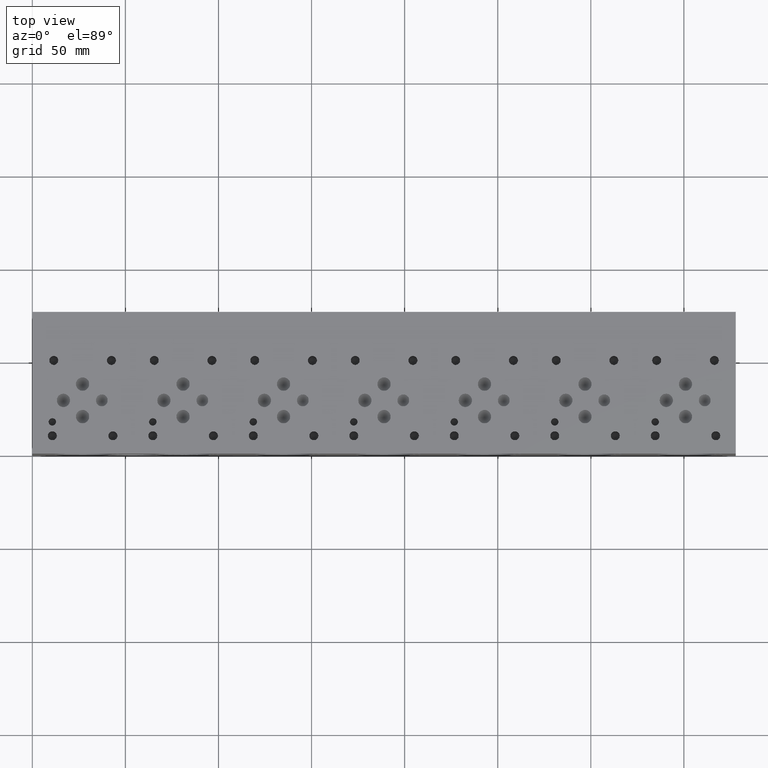
[diagram: clean part render]
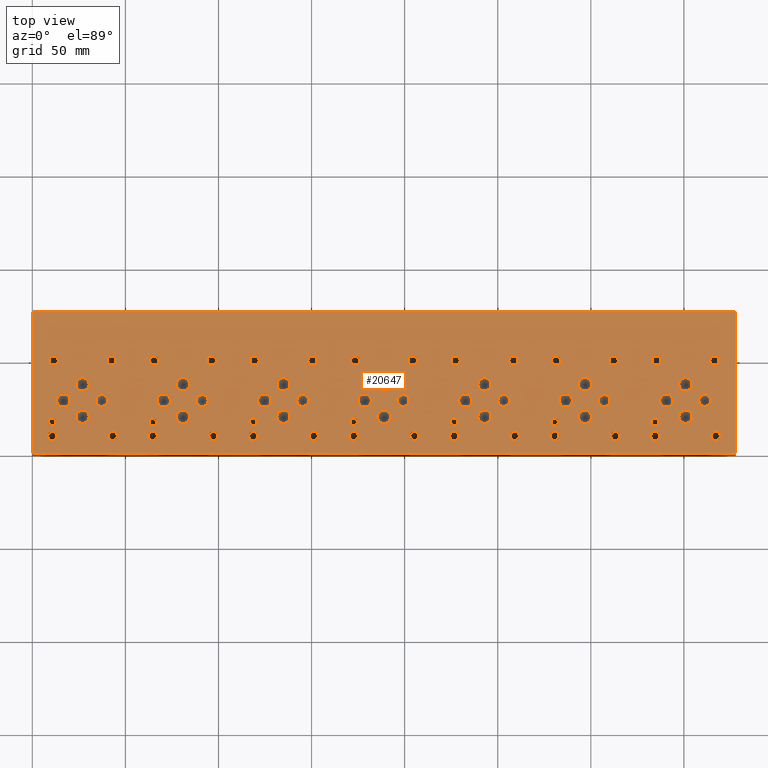
[diagram: same view with one face highlighted and labeled with its STEP entity id]
A machine part, top view. The second image highlights one B-rep face of the part: STEP entity #20647.
In plain terms, the highlighted planar face has unit normal (0, 0, 1).
Its self-contained STEP definition (entity closure, byte-faithful):
#746=CIRCLE('',#21731,1.9812);
#747=CIRCLE('',#21732,1.9812);
#750=CIRCLE('',#21737,1.9812);
#751=CIRCLE('',#21738,1.9812);
#754=CIRCLE('',#21743,1.9812);
#755=CIRCLE('',#21744,1.9812);
#758=CIRCLE('',#21749,1.9812);
#759=CIRCLE('',#21750,1.9812);
#762=CIRCLE('',#21755,1.9812);
#763=CIRCLE('',#21756,1.9812);
#766=CIRCLE('',#21761,1.9812);
#767=CIRCLE('',#21762,1.9812);
#770=CIRCLE('',#21767,3.175);
#771=CIRCLE('',#21768,3.175);
#774=CIRCLE('',#21773,3.175);
#775=CIRCLE('',#21774,3.175);
#778=CIRCLE('',#21779,3.175);
#779=CIRCLE('',#21780,3.175);
#782=CIRCLE('',#21785,3.175);
#783=CIRCLE('',#21786,3.175);
#786=CIRCLE('',#21791,3.175);
#787=CIRCLE('',#21792,3.175);
#790=CIRCLE('',#21797,3.175);
#791=CIRCLE('',#21798,3.175);
#794=CIRCLE('',#21803,3.175);
#795=CIRCLE('',#21804,3.175);
#798=CIRCLE('',#21809,3.5687);
#799=CIRCLE('',#21810,3.5687);
#802=CIRCLE('',#21815,3.5687);
#803=CIRCLE('',#21816,3.5687);
#806=CIRCLE('',#21821,3.5687);
#807=CIRCLE('',#21822,3.5687);
#810=CIRCLE('',#21827,3.5687);
#811=CIRCLE('',#21828,3.5687);
#814=CIRCLE('',#21833,3.5687);
#815=CIRCLE('',#21834,3.5687);
#818=CIRCLE('',#21839,3.5687);
#819=CIRCLE('',#21840,3.5687);
#822=CIRCLE('',#21845,3.5687);
#823=CIRCLE('',#21846,3.5687);
#826=CIRCLE('',#21851,3.5687);
#827=CIRCLE('',#21852,3.5687);
#830=CIRCLE('',#21857,3.5687);
#831=CIRCLE('',#21858,3.5687);
#834=CIRCLE('',#21863,3.5687);
#835=CIRCLE('',#21864,3.5687);
#838=CIRCLE('',#21869,3.5687);
#839=CIRCLE('',#21870,3.5687);
#842=CIRCLE('',#21875,3.5687);
#843=CIRCLE('',#21876,3.5687);
#846=CIRCLE('',#21881,3.5687);
#847=CIRCLE('',#21882,3.5687);
#850=CIRCLE('',#21887,3.5687);
#851=CIRCLE('',#21888,3.5687);
#854=CIRCLE('',#21893,3.5687);
#855=CIRCLE('',#21894,3.5687);
#858=CIRCLE('',#21899,3.5687);
#859=CIRCLE('',#21900,3.5687);
#862=CIRCLE('',#21905,3.5687);
#863=CIRCLE('',#21906,3.5687);
#866=CIRCLE('',#21911,3.5687);
#867=CIRCLE('',#21912,3.5687);
#870=CIRCLE('',#21917,3.5687);
#871=CIRCLE('',#21918,3.5687);
#874=CIRCLE('',#21923,3.5687);
#875=CIRCLE('',#21924,3.5687);
#878=CIRCLE('',#21929,3.5687);
#879=CIRCLE('',#21930,3.5687);
#882=CIRCLE('',#21935,1.9812);
#883=CIRCLE('',#21936,1.9812);
#889=CIRCLE('',#21945,2.413);
#890=CIRCLE('',#21946,2.413);
#896=CIRCLE('',#21956,2.413);
#897=CIRCLE('',#21957,2.413);
#903=CIRCLE('',#21967,2.413);
#904=CIRCLE('',#21968,2.413);
#910=CIRCLE('',#21978,2.413);
#911=CIRCLE('',#21979,2.413);
#917=CIRCLE('',#21989,2.413);
#918=CIRCLE('',#21990,2.413);
#924=CIRCLE('',#22000,2.413);
#925=CIRCLE('',#22001,2.413);
#931=CIRCLE('',#22011,2.413);
#932=CIRCLE('',#22012,2.413);
#938=CIRCLE('',#22022,2.413);
#939=CIRCLE('',#22023,2.413);
#945=CIRCLE('',#22033,2.413);
#946=CIRCLE('',#22034,2.413);
#952=CIRCLE('',#22044,2.413);
#953=CIRCLE('',#22045,2.413);
#959=CIRCLE('',#22055,2.413);
#960=CIRCLE('',#22056,2.413);
#966=CIRCLE('',#22066,2.413);
#967=CIRCLE('',#22067,2.413);
#973=CIRCLE('',#22077,2.413);
#974=CIRCLE('',#22078,2.413);
#980=CIRCLE('',#22088,2.413);
#981=CIRCLE('',#22089,2.413);
#987=CIRCLE('',#22099,2.413);
#988=CIRCLE('',#22100,2.413);
#994=CIRCLE('',#22110,2.413);
#995=CIRCLE('',#22111,2.413);
#1001=CIRCLE('',#22121,2.413);
#1002=CIRCLE('',#22122,2.413);
#1008=CIRCLE('',#22132,2.413);
#1009=CIRCLE('',#22133,2.413);
#1015=CIRCLE('',#22143,2.413);
#1016=CIRCLE('',#22144,2.413);
#1022=CIRCLE('',#22154,2.413);
#1023=CIRCLE('',#22155,2.413);
#1029=CIRCLE('',#22165,2.413);
#1030=CIRCLE('',#22166,2.413);
#1036=CIRCLE('',#22176,2.413);
#1037=CIRCLE('',#22177,2.413);
#1043=CIRCLE('',#22187,2.413);
#1044=CIRCLE('',#22188,2.413);
#1050=CIRCLE('',#22198,2.413);
#1051=CIRCLE('',#22199,2.413);
#1057=CIRCLE('',#22209,2.413);
#1058=CIRCLE('',#22210,2.413);
#1064=CIRCLE('',#22220,2.413);
#1065=CIRCLE('',#22221,2.413);
#1071=CIRCLE('',#22231,2.413);
#1072=CIRCLE('',#22232,2.413);
#1078=CIRCLE('',#22242,2.413);
#1079=CIRCLE('',#22243,2.413);
#1242=FACE_BOUND('',#4150,.T.);
#1243=FACE_BOUND('',#4151,.T.);
#1244=FACE_BOUND('',#4152,.T.);
#1245=FACE_BOUND('',#4153,.T.);
#1246=FACE_BOUND('',#4154,.T.);
#1247=FACE_BOUND('',#4155,.T.);
#1248=FACE_BOUND('',#4156,.T.);
#1249=FACE_BOUND('',#4157,.T.);
#1250=FACE_BOUND('',#4158,.T.);
#1251=FACE_BOUND('',#4159,.T.);
#1252=FACE_BOUND('',#4160,.T.);
#1253=FACE_BOUND('',#4161,.T.);
#1254=FACE_BOUND('',#4162,.T.);
#1255=FACE_BOUND('',#4163,.T.);
#1256=FACE_BOUND('',#4164,.T.);
#1257=FACE_BOUND('',#4165,.T.);
#1258=FACE_BOUND('',#4166,.T.);
#1259=FACE_BOUND('',#4167,.T.);
#1260=FACE_BOUND('',#4168,.T.);
#1261=FACE_BOUND('',#4169,.T.);
#1262=FACE_BOUND('',#4170,.T.);
#1263=FACE_BOUND('',#4171,.T.);
#1264=FACE_BOUND('',#4172,.T.);
#1265=FACE_BOUND('',#4173,.T.);
#1266=FACE_BOUND('',#4174,.T.);
#1267=FACE_BOUND('',#4175,.T.);
#1268=FACE_BOUND('',#4176,.T.);
#1269=FACE_BOUND('',#4177,.T.);
#1270=FACE_BOUND('',#4178,.T.);
#1271=FACE_BOUND('',#4179,.T.);
#1272=FACE_BOUND('',#4180,.T.);
#1273=FACE_BOUND('',#4181,.T.);
#1274=FACE_BOUND('',#4182,.T.);
#1275=FACE_BOUND('',#4183,.T.);
#1276=FACE_BOUND('',#4184,.T.);
#1277=FACE_BOUND('',#4185,.T.);
#1278=FACE_BOUND('',#4186,.T.);
#1279=FACE_BOUND('',#4187,.T.);
#1280=FACE_BOUND('',#4188,.T.);
#1281=FACE_BOUND('',#4189,.T.);
#1282=FACE_BOUND('',#4190,.T.);
#1283=FACE_BOUND('',#4191,.T.);
#1284=FACE_BOUND('',#4192,.T.);
#1285=FACE_BOUND('',#4193,.T.);
#1286=FACE_BOUND('',#4194,.T.);
#1287=FACE_BOUND('',#4195,.T.);
#1288=FACE_BOUND('',#4196,.T.);
#1289=FACE_BOUND('',#4197,.T.);
#1290=FACE_BOUND('',#4198,.T.);
#1291=FACE_BOUND('',#4199,.T.);
#1292=FACE_BOUND('',#4200,.T.);
#1293=FACE_BOUND('',#4201,.T.);
#1294=FACE_BOUND('',#4202,.T.);
#1295=FACE_BOUND('',#4203,.T.);
#1296=FACE_BOUND('',#4204,.T.);
#1297=FACE_BOUND('',#4205,.T.);
#1298=FACE_BOUND('',#4206,.T.);
#1299=FACE_BOUND('',#4207,.T.);
#1300=FACE_BOUND('',#4208,.T.);
#1301=FACE_BOUND('',#4209,.T.);
#1302=FACE_BOUND('',#4210,.T.);
#1303=FACE_BOUND('',#4211,.T.);
#1304=FACE_BOUND('',#4212,.T.);
#1825=PLANE('',#22249);
#2906=FACE_OUTER_BOUND('',#4149,.T.);
#4149=EDGE_LOOP('',(#18574,#18575,#18576,#18577));
#4150=EDGE_LOOP('',(#18578,#18579));
#4151=EDGE_LOOP('',(#18580,#18581));
#4152=EDGE_LOOP('',(#18582,#18583));
#4153=EDGE_LOOP('',(#18584,#18585));
#4154=EDGE_LOOP('',(#18586,#18587));
#4155=EDGE_LOOP('',(#18588,#18589));
#4156=EDGE_LOOP('',(#18590,#18591));
#4157=EDGE_LOOP('',(#18592,#18593));
#4158=EDGE_LOOP('',(#18594,#18595));
#4159=EDGE_LOOP('',(#18596,#18597));
#4160=EDGE_LOOP('',(#18598,#18599));
#4161=EDGE_LOOP('',(#18600,#18601));
#4162=EDGE_LOOP('',(#18602,#18603));
#4163=EDGE_LOOP('',(#18604,#18605));
#4164=EDGE_LOOP('',(#18606,#18607));
#4165=EDGE_LOOP('',(#18608,#18609));
#4166=EDGE_LOOP('',(#18610,#18611));
#4167=EDGE_LOOP('',(#18612,#18613));
#4168=EDGE_LOOP('',(#18614,#18615));
#4169=EDGE_LOOP('',(#18616,#18617));
#4170=EDGE_LOOP('',(#18618,#18619));
#4171=EDGE_LOOP('',(#18620,#18621));
#4172=EDGE_LOOP('',(#18622,#18623));
#4173=EDGE_LOOP('',(#18624,#18625));
#4174=EDGE_LOOP('',(#18626,#18627));
#4175=EDGE_LOOP('',(#18628,#18629));
#4176=EDGE_LOOP('',(#18630,#18631));
#4177=EDGE_LOOP('',(#18632,#18633));
#4178=EDGE_LOOP('',(#18634,#18635));
#4179=EDGE_LOOP('',(#18636,#18637));
#4180=EDGE_LOOP('',(#18638,#18639));
#4181=EDGE_LOOP('',(#18640,#18641));
#4182=EDGE_LOOP('',(#18642,#18643));
#4183=EDGE_LOOP('',(#18644,#18645));
#4184=EDGE_LOOP('',(#18646,#18647));
#4185=EDGE_LOOP('',(#18648,#18649));
#4186=EDGE_LOOP('',(#18650,#18651));
#4187=EDGE_LOOP('',(#18652,#18653));
#4188=EDGE_LOOP('',(#18654,#18655));
#4189=EDGE_LOOP('',(#18656,#18657));
#4190=EDGE_LOOP('',(#18658,#18659));
#4191=EDGE_LOOP('',(#18660,#18661));
#4192=EDGE_LOOP('',(#18662,#18663));
#4193=EDGE_LOOP('',(#18664,#18665));
#4194=EDGE_LOOP('',(#18666,#18667));
#4195=EDGE_LOOP('',(#18668,#18669));
#4196=EDGE_LOOP('',(#18670,#18671));
#4197=EDGE_LOOP('',(#18672,#18673));
#4198=EDGE_LOOP('',(#18674,#18675));
#4199=EDGE_LOOP('',(#18676,#18677));
#4200=EDGE_LOOP('',(#18678,#18679));
#4201=EDGE_LOOP('',(#18680,#18681));
#4202=EDGE_LOOP('',(#18682,#18683));
#4203=EDGE_LOOP('',(#18684,#18685));
#4204=EDGE_LOOP('',(#18686,#18687));
#4205=EDGE_LOOP('',(#18688,#18689));
#4206=EDGE_LOOP('',(#18690,#18691));
#4207=EDGE_LOOP('',(#18692,#18693));
#4208=EDGE_LOOP('',(#18694,#18695));
#4209=EDGE_LOOP('',(#18696,#18697));
#4210=EDGE_LOOP('',(#18698,#18699));
#4211=EDGE_LOOP('',(#18700,#18701));
#4212=EDGE_LOOP('',(#18702,#18703));
#4260=LINE('',#27466,#5962);
#5493=LINE('',#33453,#7195);
#5551=LINE('',#33724,#7253);
#5915=LINE('',#35990,#7617);
#5962=VECTOR('',#22323,10.);
#7195=VECTOR('',#24428,10.);
#7253=VECTOR('',#24540,10.);
#7617=VECTOR('',#27122,10.);
#8112=VERTEX_POINT('',#27463);
#8113=VERTEX_POINT('',#27465);
#9231=VERTEX_POINT('',#33451);
#9289=VERTEX_POINT('',#33723);
#9687=VERTEX_POINT('',#34924);
#9688=VERTEX_POINT('',#34925);
#9692=VERTEX_POINT('',#34937);
#9693=VERTEX_POINT('',#34938);
#9697=VERTEX_POINT('',#34950);
#9698=VERTEX_POINT('',#34951);
#9702=VERTEX_POINT('',#34963);
#9703=VERTEX_POINT('',#34964);
#9707=VERTEX_POINT('',#34976);
#9708=VERTEX_POINT('',#34977);
#9712=VERTEX_POINT('',#34989);
#9713=VERTEX_POINT('',#34990);
#9717=VERTEX_POINT('',#35002);
#9718=VERTEX_POINT('',#35003);
#9722=VERTEX_POINT('',#35015);
#9723=VERTEX_POINT('',#35016);
#9727=VERTEX_POINT('',#35028);
#9728=VERTEX_POINT('',#35029);
#9732=VERTEX_POINT('',#35041);
#9733=VERTEX_POINT('',#35042);
#9737=VERTEX_POINT('',#35054);
#9738=VERTEX_POINT('',#35055);
#9742=VERTEX_POINT('',#35067);
#9743=VERTEX_POINT('',#35068);
#9747=VERTEX_POINT('',#35080);
#9748=VERTEX_POINT('',#35081);
#9752=VERTEX_POINT('',#35093);
#9753=VERTEX_POINT('',#35094);
#9757=VERTEX_POINT('',#35106);
#9758=VERTEX_POINT('',#35107);
#9762=VERTEX_POINT('',#35119);
#9763=VERTEX_POINT('',#35120);
#9767=VERTEX_POINT('',#35132);
#9768=VERTEX_POINT('',#35133);
#9772=VERTEX_POINT('',#35145);
#9773=VERTEX_POINT('',#35146);
#9777=VERTEX_POINT('',#35158);
#9778=VERTEX_POINT('',#35159);
#9782=VERTEX_POINT('',#35171);
#9783=VERTEX_POINT('',#35172);
#9787=VERTEX_POINT('',#35184);
#9788=VERTEX_POINT('',#35185);
#9792=VERTEX_POINT('',#35197);
#9793=VERTEX_POINT('',#35198);
#9797=VERTEX_POINT('',#35210);
#9798=VERTEX_POINT('',#35211);
#9802=VERTEX_POINT('',#35223);
#9803=VERTEX_POINT('',#35224);
#9807=VERTEX_POINT('',#35236);
#9808=VERTEX_POINT('',#35237);
#9812=VERTEX_POINT('',#35249);
#9813=VERTEX_POINT('',#35250);
#9817=VERTEX_POINT('',#35262);
#9818=VERTEX_POINT('',#35263);
#9822=VERTEX_POINT('',#35275);
#9823=VERTEX_POINT('',#35276);
#9827=VERTEX_POINT('',#35288);
#9828=VERTEX_POINT('',#35289);
#9832=VERTEX_POINT('',#35301);
#9833=VERTEX_POINT('',#35302);
#9837=VERTEX_POINT('',#35314);
#9838=VERTEX_POINT('',#35315);
#9842=VERTEX_POINT('',#35327);
#9843=VERTEX_POINT('',#35328);
#9847=VERTEX_POINT('',#35340);
#9848=VERTEX_POINT('',#35341);
#9852=VERTEX_POINT('',#35353);
#9853=VERTEX_POINT('',#35354);
#9857=VERTEX_POINT('',#35366);
#9858=VERTEX_POINT('',#35367);
#9865=VERTEX_POINT('',#35386);
#9866=VERTEX_POINT('',#35387);
#9873=VERTEX_POINT('',#35408);
#9874=VERTEX_POINT('',#35409);
#9881=VERTEX_POINT('',#35430);
#9882=VERTEX_POINT('',#35431);
#9889=VERTEX_POINT('',#35452);
#9890=VERTEX_POINT('',#35453);
#9897=VERTEX_POINT('',#35474);
#9898=VERTEX_POINT('',#35475);
#9905=VERTEX_POINT('',#35496);
#9906=VERTEX_POINT('',#35497);
#9913=VERTEX_POINT('',#35518);
#9914=VERTEX_POINT('',#35519);
#9921=VERTEX_POINT('',#35540);
#9922=VERTEX_POINT('',#35541);
#9929=VERTEX_POINT('',#35562);
#9930=VERTEX_POINT('',#35563);
#9937=VERTEX_POINT('',#35584);
#9938=VERTEX_POINT('',#35585);
#9945=VERTEX_POINT('',#35606);
#9946=VERTEX_POINT('',#35607);
#9953=VERTEX_POINT('',#35628);
#9954=VERTEX_POINT('',#35629);
#9961=VERTEX_POINT('',#35650);
#9962=VERTEX_POINT('',#35651);
#9969=VERTEX_POINT('',#35672);
#9970=VERTEX_POINT('',#35673);
#9977=VERTEX_POINT('',#35694);
#9978=VERTEX_POINT('',#35695);
#9985=VERTEX_POINT('',#35716);
#9986=VERTEX_POINT('',#35717);
#9993=VERTEX_POINT('',#35738);
#9994=VERTEX_POINT('',#35739);
#10001=VERTEX_POINT('',#35760);
#10002=VERTEX_POINT('',#35761);
#10009=VERTEX_POINT('',#35782);
#10010=VERTEX_POINT('',#35783);
#10017=VERTEX_POINT('',#35804);
#10018=VERTEX_POINT('',#35805);
#10025=VERTEX_POINT('',#35826);
#10026=VERTEX_POINT('',#35827);
#10033=VERTEX_POINT('',#35848);
#10034=VERTEX_POINT('',#35849);
#10041=VERTEX_POINT('',#35870);
#10042=VERTEX_POINT('',#35871);
#10049=VERTEX_POINT('',#35892);
#10050=VERTEX_POINT('',#35893);
#10057=VERTEX_POINT('',#35914);
#10058=VERTEX_POINT('',#35915);
#10065=VERTEX_POINT('',#35936);
#10066=VERTEX_POINT('',#35937);
#10073=VERTEX_POINT('',#35958);
#10074=VERTEX_POINT('',#35959);
#10081=VERTEX_POINT('',#35980);
#10082=VERTEX_POINT('',#35981);
#10157=EDGE_CURVE('',#8113,#8112,#4260,.T.);
#11820=EDGE_CURVE('',#8112,#9231,#5493,.T.);
#11902=EDGE_CURVE('',#9289,#8113,#5551,.T.);
#12469=EDGE_CURVE('',#9687,#9688,#746,.T.);
#12470=EDGE_CURVE('',#9688,#9687,#747,.T.);
#12475=EDGE_CURVE('',#9692,#9693,#750,.T.);
#12476=EDGE_CURVE('',#9693,#9692,#751,.T.);
#12481=EDGE_CURVE('',#9697,#9698,#754,.T.);
#12482=EDGE_CURVE('',#9698,#9697,#755,.T.);
#12487=EDGE_CURVE('',#9702,#9703,#758,.T.);
#12488=EDGE_CURVE('',#9703,#9702,#759,.T.);
#12493=EDGE_CURVE('',#9707,#9708,#762,.T.);
#12494=EDGE_CURVE('',#9708,#9707,#763,.T.);
#12499=EDGE_CURVE('',#9712,#9713,#766,.T.);
#12500=EDGE_CURVE('',#9713,#9712,#767,.T.);
#12505=EDGE_CURVE('',#9717,#9718,#770,.T.);
#12506=EDGE_CURVE('',#9718,#9717,#771,.T.);
#12511=EDGE_CURVE('',#9722,#9723,#774,.T.);
#12512=EDGE_CURVE('',#9723,#9722,#775,.T.);
#12517=EDGE_CURVE('',#9727,#9728,#778,.T.);
#12518=EDGE_CURVE('',#9728,#9727,#779,.T.);
#12523=EDGE_CURVE('',#9732,#9733,#782,.T.);
#12524=EDGE_CURVE('',#9733,#9732,#783,.T.);
#12529=EDGE_CURVE('',#9737,#9738,#786,.T.);
#12530=EDGE_CURVE('',#9738,#9737,#787,.T.);
#12535=EDGE_CURVE('',#9742,#9743,#790,.T.);
#12536=EDGE_CURVE('',#9743,#9742,#791,.T.);
#12541=EDGE_CURVE('',#9747,#9748,#794,.T.);
#12542=EDGE_CURVE('',#9748,#9747,#795,.T.);
#12547=EDGE_CURVE('',#9752,#9753,#798,.T.);
#12548=EDGE_CURVE('',#9753,#9752,#799,.T.);
#12553=EDGE_CURVE('',#9757,#9758,#802,.T.);
#12554=EDGE_CURVE('',#9758,#9757,#803,.T.);
#12559=EDGE_CURVE('',#9762,#9763,#806,.T.);
#12560=EDGE_CURVE('',#9763,#9762,#807,.T.);
#12565=EDGE_CURVE('',#9767,#9768,#810,.T.);
#12566=EDGE_CURVE('',#9768,#9767,#811,.T.);
#12571=EDGE_CURVE('',#9772,#9773,#814,.T.);
#12572=EDGE_CURVE('',#9773,#9772,#815,.T.);
#12577=EDGE_CURVE('',#9777,#9778,#818,.T.);
#12578=EDGE_CURVE('',#9778,#9777,#819,.T.);
#12583=EDGE_CURVE('',#9782,#9783,#822,.T.);
#12584=EDGE_CURVE('',#9783,#9782,#823,.T.);
#12589=EDGE_CURVE('',#9787,#9788,#826,.T.);
#12590=EDGE_CURVE('',#9788,#9787,#827,.T.);
#12595=EDGE_CURVE('',#9792,#9793,#830,.T.);
#12596=EDGE_CURVE('',#9793,#9792,#831,.T.);
#12601=EDGE_CURVE('',#9797,#9798,#834,.T.);
#12602=EDGE_CURVE('',#9798,#9797,#835,.T.);
#12607=EDGE_CURVE('',#9802,#9803,#838,.T.);
#12608=EDGE_CURVE('',#9803,#9802,#839,.T.);
#12613=EDGE_CURVE('',#9807,#9808,#842,.T.);
#12614=EDGE_CURVE('',#9808,#9807,#843,.T.);
#12619=EDGE_CURVE('',#9812,#9813,#846,.T.);
#12620=EDGE_CURVE('',#9813,#9812,#847,.T.);
#12625=EDGE_CURVE('',#9817,#9818,#850,.T.);
#12626=EDGE_CURVE('',#9818,#9817,#851,.T.);
#12631=EDGE_CURVE('',#9822,#9823,#854,.T.);
#12632=EDGE_CURVE('',#9823,#9822,#855,.T.);
#12637=EDGE_CURVE('',#9827,#9828,#858,.T.);
#12638=EDGE_CURVE('',#9828,#9827,#859,.T.);
#12643=EDGE_CURVE('',#9832,#9833,#862,.T.);
#12644=EDGE_CURVE('',#9833,#9832,#863,.T.);
#12649=EDGE_CURVE('',#9837,#9838,#866,.T.);
#12650=EDGE_CURVE('',#9838,#9837,#867,.T.);
#12655=EDGE_CURVE('',#9842,#9843,#870,.T.);
#12656=EDGE_CURVE('',#9843,#9842,#871,.T.);
#12661=EDGE_CURVE('',#9847,#9848,#874,.T.);
#12662=EDGE_CURVE('',#9848,#9847,#875,.T.);
#12667=EDGE_CURVE('',#9852,#9853,#878,.T.);
#12668=EDGE_CURVE('',#9853,#9852,#879,.T.);
#12673=EDGE_CURVE('',#9857,#9858,#882,.T.);
#12674=EDGE_CURVE('',#9858,#9857,#883,.T.);
#12682=EDGE_CURVE('',#9865,#9866,#889,.T.);
#12683=EDGE_CURVE('',#9866,#9865,#890,.T.);
#12692=EDGE_CURVE('',#9873,#9874,#896,.T.);
#12693=EDGE_CURVE('',#9874,#9873,#897,.T.);
#12702=EDGE_CURVE('',#9881,#9882,#903,.T.);
#12703=EDGE_CURVE('',#9882,#9881,#904,.T.);
#12712=EDGE_CURVE('',#9889,#9890,#910,.T.);
#12713=EDGE_CURVE('',#9890,#9889,#911,.T.);
#12722=EDGE_CURVE('',#9897,#9898,#917,.T.);
#12723=EDGE_CURVE('',#9898,#9897,#918,.T.);
#12732=EDGE_CURVE('',#9905,#9906,#924,.T.);
#12733=EDGE_CURVE('',#9906,#9905,#925,.T.);
#12742=EDGE_CURVE('',#9913,#9914,#931,.T.);
#12743=EDGE_CURVE('',#9914,#9913,#932,.T.);
#12752=EDGE_CURVE('',#9921,#9922,#938,.T.);
#12753=EDGE_CURVE('',#9922,#9921,#939,.T.);
#12762=EDGE_CURVE('',#9929,#9930,#945,.T.);
#12763=EDGE_CURVE('',#9930,#9929,#946,.T.);
#12772=EDGE_CURVE('',#9937,#9938,#952,.T.);
#12773=EDGE_CURVE('',#9938,#9937,#953,.T.);
#12782=EDGE_CURVE('',#9945,#9946,#959,.T.);
#12783=EDGE_CURVE('',#9946,#9945,#960,.T.);
#12792=EDGE_CURVE('',#9953,#9954,#966,.T.);
#12793=EDGE_CURVE('',#9954,#9953,#967,.T.);
#12802=EDGE_CURVE('',#9961,#9962,#973,.T.);
#12803=EDGE_CURVE('',#9962,#9961,#974,.T.);
#12812=EDGE_CURVE('',#9969,#9970,#980,.T.);
#12813=EDGE_CURVE('',#9970,#9969,#981,.T.);
#12822=EDGE_CURVE('',#9977,#9978,#987,.T.);
#12823=EDGE_CURVE('',#9978,#9977,#988,.T.);
#12832=EDGE_CURVE('',#9985,#9986,#994,.T.);
#12833=EDGE_CURVE('',#9986,#9985,#995,.T.);
#12842=EDGE_CURVE('',#9993,#9994,#1001,.T.);
#12843=EDGE_CURVE('',#9994,#9993,#1002,.T.);
#12852=EDGE_CURVE('',#10001,#10002,#1008,.T.);
#12853=EDGE_CURVE('',#10002,#10001,#1009,.T.);
#12862=EDGE_CURVE('',#10009,#10010,#1015,.T.);
#12863=EDGE_CURVE('',#10010,#10009,#1016,.T.);
#12872=EDGE_CURVE('',#10017,#10018,#1022,.T.);
#12873=EDGE_CURVE('',#10018,#10017,#1023,.T.);
#12882=EDGE_CURVE('',#10025,#10026,#1029,.T.);
#12883=EDGE_CURVE('',#10026,#10025,#1030,.T.);
#12892=EDGE_CURVE('',#10033,#10034,#1036,.T.);
#12893=EDGE_CURVE('',#10034,#10033,#1037,.T.);
#12902=EDGE_CURVE('',#10041,#10042,#1043,.T.);
#12903=EDGE_CURVE('',#10042,#10041,#1044,.T.);
#12912=EDGE_CURVE('',#10049,#10050,#1050,.T.);
#12913=EDGE_CURVE('',#10050,#10049,#1051,.T.);
#12922=EDGE_CURVE('',#10057,#10058,#1057,.T.);
#12923=EDGE_CURVE('',#10058,#10057,#1058,.T.);
#12932=EDGE_CURVE('',#10065,#10066,#1064,.T.);
#12933=EDGE_CURVE('',#10066,#10065,#1065,.T.);
#12942=EDGE_CURVE('',#10073,#10074,#1071,.T.);
#12943=EDGE_CURVE('',#10074,#10073,#1072,.T.);
#12952=EDGE_CURVE('',#10081,#10082,#1078,.T.);
#12953=EDGE_CURVE('',#10082,#10081,#1079,.T.);
#12957=EDGE_CURVE('',#9231,#9289,#5915,.T.);
#18574=ORIENTED_EDGE('',*,*,#10157,.T.);
#18575=ORIENTED_EDGE('',*,*,#11820,.T.);
#18576=ORIENTED_EDGE('',*,*,#12957,.T.);
#18577=ORIENTED_EDGE('',*,*,#11902,.T.);
#18578=ORIENTED_EDGE('',*,*,#12469,.T.);
#18579=ORIENTED_EDGE('',*,*,#12470,.T.);
#18580=ORIENTED_EDGE('',*,*,#12475,.T.);
#18581=ORIENTED_EDGE('',*,*,#12476,.T.);
#18582=ORIENTED_EDGE('',*,*,#12481,.T.);
#18583=ORIENTED_EDGE('',*,*,#12482,.T.);
#18584=ORIENTED_EDGE('',*,*,#12487,.T.);
#18585=ORIENTED_EDGE('',*,*,#12488,.T.);
#18586=ORIENTED_EDGE('',*,*,#12493,.T.);
#18587=ORIENTED_EDGE('',*,*,#12494,.T.);
#18588=ORIENTED_EDGE('',*,*,#12499,.T.);
#18589=ORIENTED_EDGE('',*,*,#12500,.T.);
#18590=ORIENTED_EDGE('',*,*,#12505,.T.);
#18591=ORIENTED_EDGE('',*,*,#12506,.T.);
#18592=ORIENTED_EDGE('',*,*,#12511,.T.);
#18593=ORIENTED_EDGE('',*,*,#12512,.T.);
#18594=ORIENTED_EDGE('',*,*,#12517,.T.);
#18595=ORIENTED_EDGE('',*,*,#12518,.T.);
#18596=ORIENTED_EDGE('',*,*,#12523,.T.);
#18597=ORIENTED_EDGE('',*,*,#12524,.T.);
#18598=ORIENTED_EDGE('',*,*,#12529,.T.);
#18599=ORIENTED_EDGE('',*,*,#12530,.T.);
#18600=ORIENTED_EDGE('',*,*,#12535,.T.);
#18601=ORIENTED_EDGE('',*,*,#12536,.T.);
#18602=ORIENTED_EDGE('',*,*,#12541,.T.);
#18603=ORIENTED_EDGE('',*,*,#12542,.T.);
#18604=ORIENTED_EDGE('',*,*,#12547,.T.);
#18605=ORIENTED_EDGE('',*,*,#12548,.T.);
#18606=ORIENTED_EDGE('',*,*,#12553,.T.);
#18607=ORIENTED_EDGE('',*,*,#12554,.T.);
#18608=ORIENTED_EDGE('',*,*,#12559,.T.);
#18609=ORIENTED_EDGE('',*,*,#12560,.T.);
#18610=ORIENTED_EDGE('',*,*,#12565,.T.);
#18611=ORIENTED_EDGE('',*,*,#12566,.T.);
#18612=ORIENTED_EDGE('',*,*,#12571,.T.);
#18613=ORIENTED_EDGE('',*,*,#12572,.T.);
#18614=ORIENTED_EDGE('',*,*,#12577,.T.);
#18615=ORIENTED_EDGE('',*,*,#12578,.T.);
#18616=ORIENTED_EDGE('',*,*,#12583,.T.);
#18617=ORIENTED_EDGE('',*,*,#12584,.T.);
#18618=ORIENTED_EDGE('',*,*,#12589,.T.);
#18619=ORIENTED_EDGE('',*,*,#12590,.T.);
#18620=ORIENTED_EDGE('',*,*,#12595,.T.);
#18621=ORIENTED_EDGE('',*,*,#12596,.T.);
#18622=ORIENTED_EDGE('',*,*,#12601,.T.);
#18623=ORIENTED_EDGE('',*,*,#12602,.T.);
#18624=ORIENTED_EDGE('',*,*,#12607,.T.);
#18625=ORIENTED_EDGE('',*,*,#12608,.T.);
#18626=ORIENTED_EDGE('',*,*,#12613,.T.);
#18627=ORIENTED_EDGE('',*,*,#12614,.T.);
#18628=ORIENTED_EDGE('',*,*,#12619,.T.);
#18629=ORIENTED_EDGE('',*,*,#12620,.T.);
#18630=ORIENTED_EDGE('',*,*,#12625,.T.);
#18631=ORIENTED_EDGE('',*,*,#12626,.T.);
#18632=ORIENTED_EDGE('',*,*,#12631,.T.);
#18633=ORIENTED_EDGE('',*,*,#12632,.T.);
#18634=ORIENTED_EDGE('',*,*,#12637,.T.);
#18635=ORIENTED_EDGE('',*,*,#12638,.T.);
#18636=ORIENTED_EDGE('',*,*,#12643,.T.);
#18637=ORIENTED_EDGE('',*,*,#12644,.T.);
#18638=ORIENTED_EDGE('',*,*,#12649,.T.);
#18639=ORIENTED_EDGE('',*,*,#12650,.T.);
#18640=ORIENTED_EDGE('',*,*,#12655,.T.);
#18641=ORIENTED_EDGE('',*,*,#12656,.T.);
#18642=ORIENTED_EDGE('',*,*,#12661,.T.);
#18643=ORIENTED_EDGE('',*,*,#12662,.T.);
#18644=ORIENTED_EDGE('',*,*,#12667,.T.);
#18645=ORIENTED_EDGE('',*,*,#12668,.T.);
#18646=ORIENTED_EDGE('',*,*,#12673,.T.);
#18647=ORIENTED_EDGE('',*,*,#12674,.T.);
#18648=ORIENTED_EDGE('',*,*,#12682,.T.);
#18649=ORIENTED_EDGE('',*,*,#12683,.T.);
#18650=ORIENTED_EDGE('',*,*,#12692,.T.);
#18651=ORIENTED_EDGE('',*,*,#12693,.T.);
#18652=ORIENTED_EDGE('',*,*,#12702,.T.);
#18653=ORIENTED_EDGE('',*,*,#12703,.T.);
#18654=ORIENTED_EDGE('',*,*,#12712,.T.);
#18655=ORIENTED_EDGE('',*,*,#12713,.T.);
#18656=ORIENTED_EDGE('',*,*,#12722,.T.);
#18657=ORIENTED_EDGE('',*,*,#12723,.T.);
#18658=ORIENTED_EDGE('',*,*,#12732,.T.);
#18659=ORIENTED_EDGE('',*,*,#12733,.T.);
#18660=ORIENTED_EDGE('',*,*,#12742,.T.);
#18661=ORIENTED_EDGE('',*,*,#12743,.T.);
#18662=ORIENTED_EDGE('',*,*,#12752,.T.);
#18663=ORIENTED_EDGE('',*,*,#12753,.T.);
#18664=ORIENTED_EDGE('',*,*,#12762,.T.);
#18665=ORIENTED_EDGE('',*,*,#12763,.T.);
#18666=ORIENTED_EDGE('',*,*,#12772,.T.);
#18667=ORIENTED_EDGE('',*,*,#12773,.T.);
#18668=ORIENTED_EDGE('',*,*,#12782,.T.);
#18669=ORIENTED_EDGE('',*,*,#12783,.T.);
#18670=ORIENTED_EDGE('',*,*,#12792,.T.);
#18671=ORIENTED_EDGE('',*,*,#12793,.T.);
#18672=ORIENTED_EDGE('',*,*,#12802,.T.);
#18673=ORIENTED_EDGE('',*,*,#12803,.T.);
#18674=ORIENTED_EDGE('',*,*,#12812,.T.);
#18675=ORIENTED_EDGE('',*,*,#12813,.T.);
#18676=ORIENTED_EDGE('',*,*,#12822,.T.);
#18677=ORIENTED_EDGE('',*,*,#12823,.T.);
#18678=ORIENTED_EDGE('',*,*,#12832,.T.);
#18679=ORIENTED_EDGE('',*,*,#12833,.T.);
#18680=ORIENTED_EDGE('',*,*,#12842,.T.);
#18681=ORIENTED_EDGE('',*,*,#12843,.T.);
#18682=ORIENTED_EDGE('',*,*,#12852,.T.);
#18683=ORIENTED_EDGE('',*,*,#12853,.T.);
#18684=ORIENTED_EDGE('',*,*,#12862,.T.);
#18685=ORIENTED_EDGE('',*,*,#12863,.T.);
#18686=ORIENTED_EDGE('',*,*,#12872,.T.);
#18687=ORIENTED_EDGE('',*,*,#12873,.T.);
#18688=ORIENTED_EDGE('',*,*,#12882,.T.);
#18689=ORIENTED_EDGE('',*,*,#12883,.T.);
#18690=ORIENTED_EDGE('',*,*,#12892,.T.);
#18691=ORIENTED_EDGE('',*,*,#12893,.T.);
#18692=ORIENTED_EDGE('',*,*,#12902,.T.);
#18693=ORIENTED_EDGE('',*,*,#12903,.T.);
#18694=ORIENTED_EDGE('',*,*,#12912,.T.);
#18695=ORIENTED_EDGE('',*,*,#12913,.T.);
#18696=ORIENTED_EDGE('',*,*,#12922,.T.);
#18697=ORIENTED_EDGE('',*,*,#12923,.T.);
#18698=ORIENTED_EDGE('',*,*,#12932,.T.);
#18699=ORIENTED_EDGE('',*,*,#12933,.T.);
#18700=ORIENTED_EDGE('',*,*,#12942,.T.);
#18701=ORIENTED_EDGE('',*,*,#12943,.T.);
#18702=ORIENTED_EDGE('',*,*,#12952,.T.);
#18703=ORIENTED_EDGE('',*,*,#12953,.T.);
#20647=ADVANCED_FACE('',(#2906,#1242,#1243,#1244,#1245,#1246,#1247,#1248,
#1249,#1250,#1251,#1252,#1253,#1254,#1255,#1256,#1257,#1258,#1259,#1260,
#1261,#1262,#1263,#1264,#1265,#1266,#1267,#1268,#1269,#1270,#1271,#1272,
#1273,#1274,#1275,#1276,#1277,#1278,#1279,#1280,#1281,#1282,#1283,#1284,
#1285,#1286,#1287,#1288,#1289,#1290,#1291,#1292,#1293,#1294,#1295,#1296,
#1297,#1298,#1299,#1300,#1301,#1302,#1303,#1304),#1825,.T.);
#21731=AXIS2_PLACEMENT_3D('',#34926,#25936,#25937);
#21732=AXIS2_PLACEMENT_3D('',#34927,#25938,#25939);
#21737=AXIS2_PLACEMENT_3D('',#34939,#25950,#25951);
#21738=AXIS2_PLACEMENT_3D('',#34940,#25952,#25953);
#21743=AXIS2_PLACEMENT_3D('',#34952,#25964,#25965);
#21744=AXIS2_PLACEMENT_3D('',#34953,#25966,#25967);
#21749=AXIS2_PLACEMENT_3D('',#34965,#25978,#25979);
#21750=AXIS2_PLACEMENT_3D('',#34966,#25980,#25981);
#21755=AXIS2_PLACEMENT_3D('',#34978,#25992,#25993);
#21756=AXIS2_PLACEMENT_3D('',#34979,#25994,#25995);
#21761=AXIS2_PLACEMENT_3D('',#34991,#26006,#26007);
#21762=AXIS2_PLACEMENT_3D('',#34992,#26008,#26009);
#21767=AXIS2_PLACEMENT_3D('',#35004,#26020,#26021);
#21768=AXIS2_PLACEMENT_3D('',#35005,#26022,#26023);
#21773=AXIS2_PLACEMENT_3D('',#35017,#26034,#26035);
#21774=AXIS2_PLACEMENT_3D('',#35018,#26036,#26037);
#21779=AXIS2_PLACEMENT_3D('',#35030,#26048,#26049);
#21780=AXIS2_PLACEMENT_3D('',#35031,#26050,#26051);
#21785=AXIS2_PLACEMENT_3D('',#35043,#26062,#26063);
#21786=AXIS2_PLACEMENT_3D('',#35044,#26064,#26065);
#21791=AXIS2_PLACEMENT_3D('',#35056,#26076,#26077);
#21792=AXIS2_PLACEMENT_3D('',#35057,#26078,#26079);
#21797=AXIS2_PLACEMENT_3D('',#35069,#26090,#26091);
#21798=AXIS2_PLACEMENT_3D('',#35070,#26092,#26093);
#21803=AXIS2_PLACEMENT_3D('',#35082,#26104,#26105);
#21804=AXIS2_PLACEMENT_3D('',#35083,#26106,#26107);
#21809=AXIS2_PLACEMENT_3D('',#35095,#26118,#26119);
#21810=AXIS2_PLACEMENT_3D('',#35096,#26120,#26121);
#21815=AXIS2_PLACEMENT_3D('',#35108,#26132,#26133);
#21816=AXIS2_PLACEMENT_3D('',#35109,#26134,#26135);
#21821=AXIS2_PLACEMENT_3D('',#35121,#26146,#26147);
#21822=AXIS2_PLACEMENT_3D('',#35122,#26148,#26149);
#21827=AXIS2_PLACEMENT_3D('',#35134,#26160,#26161);
#21828=AXIS2_PLACEMENT_3D('',#35135,#26162,#26163);
#21833=AXIS2_PLACEMENT_3D('',#35147,#26174,#26175);
#21834=AXIS2_PLACEMENT_3D('',#35148,#26176,#26177);
#21839=AXIS2_PLACEMENT_3D('',#35160,#26188,#26189);
#21840=AXIS2_PLACEMENT_3D('',#35161,#26190,#26191);
#21845=AXIS2_PLACEMENT_3D('',#35173,#26202,#26203);
#21846=AXIS2_PLACEMENT_3D('',#35174,#26204,#26205);
#21851=AXIS2_PLACEMENT_3D('',#35186,#26216,#26217);
#21852=AXIS2_PLACEMENT_3D('',#35187,#26218,#26219);
#21857=AXIS2_PLACEMENT_3D('',#35199,#26230,#26231);
#21858=AXIS2_PLACEMENT_3D('',#35200,#26232,#26233);
#21863=AXIS2_PLACEMENT_3D('',#35212,#26244,#26245);
#21864=AXIS2_PLACEMENT_3D('',#35213,#26246,#26247);
#21869=AXIS2_PLACEMENT_3D('',#35225,#26258,#26259);
#21870=AXIS2_PLACEMENT_3D('',#35226,#26260,#26261);
#21875=AXIS2_PLACEMENT_3D('',#35238,#26272,#26273);
#21876=AXIS2_PLACEMENT_3D('',#35239,#26274,#26275);
#21881=AXIS2_PLACEMENT_3D('',#35251,#26286,#26287);
#21882=AXIS2_PLACEMENT_3D('',#35252,#26288,#26289);
#21887=AXIS2_PLACEMENT_3D('',#35264,#26300,#26301);
#21888=AXIS2_PLACEMENT_3D('',#35265,#26302,#26303);
#21893=AXIS2_PLACEMENT_3D('',#35277,#26314,#26315);
#21894=AXIS2_PLACEMENT_3D('',#35278,#26316,#26317);
#21899=AXIS2_PLACEMENT_3D('',#35290,#26328,#26329);
#21900=AXIS2_PLACEMENT_3D('',#35291,#26330,#26331);
#21905=AXIS2_PLACEMENT_3D('',#35303,#26342,#26343);
#21906=AXIS2_PLACEMENT_3D('',#35304,#26344,#26345);
#21911=AXIS2_PLACEMENT_3D('',#35316,#26356,#26357);
#21912=AXIS2_PLACEMENT_3D('',#35317,#26358,#26359);
#21917=AXIS2_PLACEMENT_3D('',#35329,#26370,#26371);
#21918=AXIS2_PLACEMENT_3D('',#35330,#26372,#26373);
#21923=AXIS2_PLACEMENT_3D('',#35342,#26384,#26385);
#21924=AXIS2_PLACEMENT_3D('',#35343,#26386,#26387);
#21929=AXIS2_PLACEMENT_3D('',#35355,#26398,#26399);
#21930=AXIS2_PLACEMENT_3D('',#35356,#26400,#26401);
#21935=AXIS2_PLACEMENT_3D('',#35368,#26412,#26413);
#21936=AXIS2_PLACEMENT_3D('',#35369,#26414,#26415);
#21945=AXIS2_PLACEMENT_3D('',#35388,#26434,#26435);
#21946=AXIS2_PLACEMENT_3D('',#35389,#26436,#26437);
#21956=AXIS2_PLACEMENT_3D('',#35410,#26459,#26460);
#21957=AXIS2_PLACEMENT_3D('',#35411,#26461,#26462);
#21967=AXIS2_PLACEMENT_3D('',#35432,#26484,#26485);
#21968=AXIS2_PLACEMENT_3D('',#35433,#26486,#26487);
#21978=AXIS2_PLACEMENT_3D('',#35454,#26509,#26510);
#21979=AXIS2_PLACEMENT_3D('',#35455,#26511,#26512);
#21989=AXIS2_PLACEMENT_3D('',#35476,#26534,#26535);
#21990=AXIS2_PLACEMENT_3D('',#35477,#26536,#26537);
#22000=AXIS2_PLACEMENT_3D('',#35498,#26559,#26560);
#22001=AXIS2_PLACEMENT_3D('',#35499,#26561,#26562);
#22011=AXIS2_PLACEMENT_3D('',#35520,#26584,#26585);
#22012=AXIS2_PLACEMENT_3D('',#35521,#26586,#26587);
#22022=AXIS2_PLACEMENT_3D('',#35542,#26609,#26610);
#22023=AXIS2_PLACEMENT_3D('',#35543,#26611,#26612);
#22033=AXIS2_PLACEMENT_3D('',#35564,#26634,#26635);
#22034=AXIS2_PLACEMENT_3D('',#35565,#26636,#26637);
#22044=AXIS2_PLACEMENT_3D('',#35586,#26659,#26660);
#22045=AXIS2_PLACEMENT_3D('',#35587,#26661,#26662);
#22055=AXIS2_PLACEMENT_3D('',#35608,#26684,#26685);
#22056=AXIS2_PLACEMENT_3D('',#35609,#26686,#26687);
#22066=AXIS2_PLACEMENT_3D('',#35630,#26709,#26710);
#22067=AXIS2_PLACEMENT_3D('',#35631,#26711,#26712);
#22077=AXIS2_PLACEMENT_3D('',#35652,#26734,#26735);
#22078=AXIS2_PLACEMENT_3D('',#35653,#26736,#26737);
#22088=AXIS2_PLACEMENT_3D('',#35674,#26759,#26760);
#22089=AXIS2_PLACEMENT_3D('',#35675,#26761,#26762);
#22099=AXIS2_PLACEMENT_3D('',#35696,#26784,#26785);
#22100=AXIS2_PLACEMENT_3D('',#35697,#26786,#26787);
#22110=AXIS2_PLACEMENT_3D('',#35718,#26809,#26810);
#22111=AXIS2_PLACEMENT_3D('',#35719,#26811,#26812);
#22121=AXIS2_PLACEMENT_3D('',#35740,#26834,#26835);
#22122=AXIS2_PLACEMENT_3D('',#35741,#26836,#26837);
#22132=AXIS2_PLACEMENT_3D('',#35762,#26859,#26860);
#22133=AXIS2_PLACEMENT_3D('',#35763,#26861,#26862);
#22143=AXIS2_PLACEMENT_3D('',#35784,#26884,#26885);
#22144=AXIS2_PLACEMENT_3D('',#35785,#26886,#26887);
#22154=AXIS2_PLACEMENT_3D('',#35806,#26909,#26910);
#22155=AXIS2_PLACEMENT_3D('',#35807,#26911,#26912);
#22165=AXIS2_PLACEMENT_3D('',#35828,#26934,#26935);
#22166=AXIS2_PLACEMENT_3D('',#35829,#26936,#26937);
#22176=AXIS2_PLACEMENT_3D('',#35850,#26959,#26960);
#22177=AXIS2_PLACEMENT_3D('',#35851,#26961,#26962);
#22187=AXIS2_PLACEMENT_3D('',#35872,#26984,#26985);
#22188=AXIS2_PLACEMENT_3D('',#35873,#26986,#26987);
#22198=AXIS2_PLACEMENT_3D('',#35894,#27009,#27010);
#22199=AXIS2_PLACEMENT_3D('',#35895,#27011,#27012);
#22209=AXIS2_PLACEMENT_3D('',#35916,#27034,#27035);
#22210=AXIS2_PLACEMENT_3D('',#35917,#27036,#27037);
#22220=AXIS2_PLACEMENT_3D('',#35938,#27059,#27060);
#22221=AXIS2_PLACEMENT_3D('',#35939,#27061,#27062);
#22231=AXIS2_PLACEMENT_3D('',#35960,#27084,#27085);
#22232=AXIS2_PLACEMENT_3D('',#35961,#27086,#27087);
#22242=AXIS2_PLACEMENT_3D('',#35982,#27109,#27110);
#22243=AXIS2_PLACEMENT_3D('',#35983,#27111,#27112);
#22249=AXIS2_PLACEMENT_3D('',#35993,#27127,#27128);
#22323=DIRECTION('',(1.,0.,0.));
#24428=DIRECTION('',(0.,1.,0.));
#24540=DIRECTION('',(0.,-1.,0.));
#25936=DIRECTION('center_axis',(0.,0.,-1.));
#25937=DIRECTION('ref_axis',(1.,0.,0.));
#25938=DIRECTION('center_axis',(0.,0.,-1.));
#25939=DIRECTION('ref_axis',(1.,0.,0.));
#25950=DIRECTION('center_axis',(0.,0.,-1.));
#25951=DIRECTION('ref_axis',(1.,0.,0.));
#25952=DIRECTION('center_axis',(0.,0.,-1.));
#25953=DIRECTION('ref_axis',(1.,0.,0.));
#25964=DIRECTION('center_axis',(0.,0.,-1.));
#25965=DIRECTION('ref_axis',(1.,0.,0.));
#25966=DIRECTION('center_axis',(0.,0.,-1.));
#25967=DIRECTION('ref_axis',(1.,0.,0.));
#25978=DIRECTION('center_axis',(0.,0.,-1.));
#25979=DIRECTION('ref_axis',(1.,0.,0.));
#25980=DIRECTION('center_axis',(0.,0.,-1.));
#25981=DIRECTION('ref_axis',(1.,0.,0.));
#25992=DIRECTION('center_axis',(0.,0.,-1.));
#25993=DIRECTION('ref_axis',(1.,0.,0.));
#25994=DIRECTION('center_axis',(0.,0.,-1.));
#25995=DIRECTION('ref_axis',(1.,0.,0.));
#26006=DIRECTION('center_axis',(0.,0.,-1.));
#26007=DIRECTION('ref_axis',(1.,0.,0.));
#26008=DIRECTION('center_axis',(0.,0.,-1.));
#26009=DIRECTION('ref_axis',(1.,0.,0.));
#26020=DIRECTION('center_axis',(0.,0.,-1.));
#26021=DIRECTION('ref_axis',(1.,0.,0.));
#26022=DIRECTION('center_axis',(0.,0.,-1.));
#26023=DIRECTION('ref_axis',(1.,0.,0.));
#26034=DIRECTION('center_axis',(0.,0.,-1.));
#26035=DIRECTION('ref_axis',(1.,0.,0.));
#26036=DIRECTION('center_axis',(0.,0.,-1.));
#26037=DIRECTION('ref_axis',(1.,0.,0.));
#26048=DIRECTION('center_axis',(0.,0.,-1.));
#26049=DIRECTION('ref_axis',(1.,0.,0.));
#26050=DIRECTION('center_axis',(0.,0.,-1.));
#26051=DIRECTION('ref_axis',(1.,0.,0.));
#26062=DIRECTION('center_axis',(0.,0.,-1.));
#26063=DIRECTION('ref_axis',(1.,0.,0.));
#26064=DIRECTION('center_axis',(0.,0.,-1.));
#26065=DIRECTION('ref_axis',(1.,0.,0.));
#26076=DIRECTION('center_axis',(0.,0.,-1.));
#26077=DIRECTION('ref_axis',(1.,0.,0.));
#26078=DIRECTION('center_axis',(0.,0.,-1.));
#26079=DIRECTION('ref_axis',(1.,0.,0.));
#26090=DIRECTION('center_axis',(0.,0.,-1.));
#26091=DIRECTION('ref_axis',(1.,0.,0.));
#26092=DIRECTION('center_axis',(0.,0.,-1.));
#26093=DIRECTION('ref_axis',(1.,0.,0.));
#26104=DIRECTION('center_axis',(0.,0.,-1.));
#26105=DIRECTION('ref_axis',(1.,0.,0.));
#26106=DIRECTION('center_axis',(0.,0.,-1.));
#26107=DIRECTION('ref_axis',(1.,0.,0.));
#26118=DIRECTION('center_axis',(0.,0.,-1.));
#26119=DIRECTION('ref_axis',(1.,0.,0.));
#26120=DIRECTION('center_axis',(0.,0.,-1.));
#26121=DIRECTION('ref_axis',(1.,0.,0.));
#26132=DIRECTION('center_axis',(0.,0.,-1.));
#26133=DIRECTION('ref_axis',(1.,0.,0.));
#26134=DIRECTION('center_axis',(0.,0.,-1.));
#26135=DIRECTION('ref_axis',(1.,0.,0.));
#26146=DIRECTION('center_axis',(0.,0.,-1.));
#26147=DIRECTION('ref_axis',(1.,0.,0.));
#26148=DIRECTION('center_axis',(0.,0.,-1.));
#26149=DIRECTION('ref_axis',(1.,0.,0.));
#26160=DIRECTION('center_axis',(0.,0.,-1.));
#26161=DIRECTION('ref_axis',(1.,0.,0.));
#26162=DIRECTION('center_axis',(0.,0.,-1.));
#26163=DIRECTION('ref_axis',(1.,0.,0.));
#26174=DIRECTION('center_axis',(0.,0.,-1.));
#26175=DIRECTION('ref_axis',(1.,0.,0.));
#26176=DIRECTION('center_axis',(0.,0.,-1.));
#26177=DIRECTION('ref_axis',(1.,0.,0.));
#26188=DIRECTION('center_axis',(0.,0.,-1.));
#26189=DIRECTION('ref_axis',(1.,0.,0.));
#26190=DIRECTION('center_axis',(0.,0.,-1.));
#26191=DIRECTION('ref_axis',(1.,0.,0.));
#26202=DIRECTION('center_axis',(0.,0.,-1.));
#26203=DIRECTION('ref_axis',(1.,0.,0.));
#26204=DIRECTION('center_axis',(0.,0.,-1.));
#26205=DIRECTION('ref_axis',(1.,0.,0.));
#26216=DIRECTION('center_axis',(0.,0.,-1.));
#26217=DIRECTION('ref_axis',(1.,0.,0.));
#26218=DIRECTION('center_axis',(0.,0.,-1.));
#26219=DIRECTION('ref_axis',(1.,0.,0.));
#26230=DIRECTION('center_axis',(0.,0.,-1.));
#26231=DIRECTION('ref_axis',(1.,0.,0.));
#26232=DIRECTION('center_axis',(0.,0.,-1.));
#26233=DIRECTION('ref_axis',(1.,0.,0.));
#26244=DIRECTION('center_axis',(0.,0.,-1.));
#26245=DIRECTION('ref_axis',(1.,0.,0.));
#26246=DIRECTION('center_axis',(0.,0.,-1.));
#26247=DIRECTION('ref_axis',(1.,0.,0.));
#26258=DIRECTION('center_axis',(0.,0.,-1.));
#26259=DIRECTION('ref_axis',(1.,0.,0.));
#26260=DIRECTION('center_axis',(0.,0.,-1.));
#26261=DIRECTION('ref_axis',(1.,0.,0.));
#26272=DIRECTION('center_axis',(0.,0.,-1.));
#26273=DIRECTION('ref_axis',(1.,0.,0.));
#26274=DIRECTION('center_axis',(0.,0.,-1.));
#26275=DIRECTION('ref_axis',(1.,0.,0.));
#26286=DIRECTION('center_axis',(0.,0.,-1.));
#26287=DIRECTION('ref_axis',(1.,0.,0.));
#26288=DIRECTION('center_axis',(0.,0.,-1.));
#26289=DIRECTION('ref_axis',(1.,0.,0.));
#26300=DIRECTION('center_axis',(0.,0.,-1.));
#26301=DIRECTION('ref_axis',(1.,0.,0.));
#26302=DIRECTION('center_axis',(0.,0.,-1.));
#26303=DIRECTION('ref_axis',(1.,0.,0.));
#26314=DIRECTION('center_axis',(0.,0.,-1.));
#26315=DIRECTION('ref_axis',(1.,0.,0.));
#26316=DIRECTION('center_axis',(0.,0.,-1.));
#26317=DIRECTION('ref_axis',(1.,0.,0.));
#26328=DIRECTION('center_axis',(0.,0.,-1.));
#26329=DIRECTION('ref_axis',(1.,0.,0.));
#26330=DIRECTION('center_axis',(0.,0.,-1.));
#26331=DIRECTION('ref_axis',(1.,0.,0.));
#26342=DIRECTION('center_axis',(0.,0.,-1.));
#26343=DIRECTION('ref_axis',(1.,0.,0.));
#26344=DIRECTION('center_axis',(0.,0.,-1.));
#26345=DIRECTION('ref_axis',(1.,0.,0.));
#26356=DIRECTION('center_axis',(0.,0.,-1.));
#26357=DIRECTION('ref_axis',(1.,0.,0.));
#26358=DIRECTION('center_axis',(0.,0.,-1.));
#26359=DIRECTION('ref_axis',(1.,0.,0.));
#26370=DIRECTION('center_axis',(0.,0.,-1.));
#26371=DIRECTION('ref_axis',(1.,0.,0.));
#26372=DIRECTION('center_axis',(0.,0.,-1.));
#26373=DIRECTION('ref_axis',(1.,0.,0.));
#26384=DIRECTION('center_axis',(0.,0.,-1.));
#26385=DIRECTION('ref_axis',(1.,0.,0.));
#26386=DIRECTION('center_axis',(0.,0.,-1.));
#26387=DIRECTION('ref_axis',(1.,0.,0.));
#26398=DIRECTION('center_axis',(0.,0.,-1.));
#26399=DIRECTION('ref_axis',(1.,0.,0.));
#26400=DIRECTION('center_axis',(0.,0.,-1.));
#26401=DIRECTION('ref_axis',(1.,0.,0.));
#26412=DIRECTION('center_axis',(0.,0.,-1.));
#26413=DIRECTION('ref_axis',(1.,0.,0.));
#26414=DIRECTION('center_axis',(0.,0.,-1.));
#26415=DIRECTION('ref_axis',(1.,0.,0.));
#26434=DIRECTION('center_axis',(0.,0.,-1.));
#26435=DIRECTION('ref_axis',(1.,0.,0.));
#26436=DIRECTION('center_axis',(0.,0.,-1.));
#26437=DIRECTION('ref_axis',(1.,0.,0.));
#26459=DIRECTION('center_axis',(0.,0.,-1.));
#26460=DIRECTION('ref_axis',(1.,0.,0.));
#26461=DIRECTION('center_axis',(0.,0.,-1.));
#26462=DIRECTION('ref_axis',(1.,0.,0.));
#26484=DIRECTION('center_axis',(0.,0.,-1.));
#26485=DIRECTION('ref_axis',(1.,0.,0.));
#26486=DIRECTION('center_axis',(0.,0.,-1.));
#26487=DIRECTION('ref_axis',(1.,0.,0.));
#26509=DIRECTION('center_axis',(0.,0.,-1.));
#26510=DIRECTION('ref_axis',(1.,0.,0.));
#26511=DIRECTION('center_axis',(0.,0.,-1.));
#26512=DIRECTION('ref_axis',(1.,0.,0.));
#26534=DIRECTION('center_axis',(0.,0.,-1.));
#26535=DIRECTION('ref_axis',(1.,0.,0.));
#26536=DIRECTION('center_axis',(0.,0.,-1.));
#26537=DIRECTION('ref_axis',(1.,0.,0.));
#26559=DIRECTION('center_axis',(0.,0.,-1.));
#26560=DIRECTION('ref_axis',(1.,0.,0.));
#26561=DIRECTION('center_axis',(0.,0.,-1.));
#26562=DIRECTION('ref_axis',(1.,0.,0.));
#26584=DIRECTION('center_axis',(0.,0.,-1.));
#26585=DIRECTION('ref_axis',(1.,0.,0.));
#26586=DIRECTION('center_axis',(0.,0.,-1.));
#26587=DIRECTION('ref_axis',(1.,0.,0.));
#26609=DIRECTION('center_axis',(0.,0.,-1.));
#26610=DIRECTION('ref_axis',(1.,0.,0.));
#26611=DIRECTION('center_axis',(0.,0.,-1.));
#26612=DIRECTION('ref_axis',(1.,0.,0.));
#26634=DIRECTION('center_axis',(0.,0.,-1.));
#26635=DIRECTION('ref_axis',(1.,0.,0.));
#26636=DIRECTION('center_axis',(0.,0.,-1.));
#26637=DIRECTION('ref_axis',(1.,0.,0.));
#26659=DIRECTION('center_axis',(0.,0.,-1.));
#26660=DIRECTION('ref_axis',(1.,0.,0.));
#26661=DIRECTION('center_axis',(0.,0.,-1.));
#26662=DIRECTION('ref_axis',(1.,0.,0.));
#26684=DIRECTION('center_axis',(0.,0.,-1.));
#26685=DIRECTION('ref_axis',(1.,0.,0.));
#26686=DIRECTION('center_axis',(0.,0.,-1.));
#26687=DIRECTION('ref_axis',(1.,0.,0.));
#26709=DIRECTION('center_axis',(0.,0.,-1.));
#26710=DIRECTION('ref_axis',(1.,0.,0.));
#26711=DIRECTION('center_axis',(0.,0.,-1.));
#26712=DIRECTION('ref_axis',(1.,0.,0.));
#26734=DIRECTION('center_axis',(0.,0.,-1.));
#26735=DIRECTION('ref_axis',(1.,0.,0.));
#26736=DIRECTION('center_axis',(0.,0.,-1.));
#26737=DIRECTION('ref_axis',(1.,0.,0.));
#26759=DIRECTION('center_axis',(0.,0.,-1.));
#26760=DIRECTION('ref_axis',(1.,0.,0.));
#26761=DIRECTION('center_axis',(0.,0.,-1.));
#26762=DIRECTION('ref_axis',(1.,0.,0.));
#26784=DIRECTION('center_axis',(0.,0.,-1.));
#26785=DIRECTION('ref_axis',(1.,0.,0.));
#26786=DIRECTION('center_axis',(0.,0.,-1.));
#26787=DIRECTION('ref_axis',(1.,0.,0.));
#26809=DIRECTION('center_axis',(0.,0.,-1.));
#26810=DIRECTION('ref_axis',(1.,0.,0.));
#26811=DIRECTION('center_axis',(0.,0.,-1.));
#26812=DIRECTION('ref_axis',(1.,0.,0.));
#26834=DIRECTION('center_axis',(0.,0.,-1.));
#26835=DIRECTION('ref_axis',(1.,0.,0.));
#26836=DIRECTION('center_axis',(0.,0.,-1.));
#26837=DIRECTION('ref_axis',(1.,0.,0.));
#26859=DIRECTION('center_axis',(0.,0.,-1.));
#26860=DIRECTION('ref_axis',(1.,0.,0.));
#26861=DIRECTION('center_axis',(0.,0.,-1.));
#26862=DIRECTION('ref_axis',(1.,0.,0.));
#26884=DIRECTION('center_axis',(0.,0.,-1.));
#26885=DIRECTION('ref_axis',(1.,0.,0.));
#26886=DIRECTION('center_axis',(0.,0.,-1.));
#26887=DIRECTION('ref_axis',(1.,0.,0.));
#26909=DIRECTION('center_axis',(0.,0.,-1.));
#26910=DIRECTION('ref_axis',(1.,0.,0.));
#26911=DIRECTION('center_axis',(0.,0.,-1.));
#26912=DIRECTION('ref_axis',(1.,0.,0.));
#26934=DIRECTION('center_axis',(0.,0.,-1.));
#26935=DIRECTION('ref_axis',(1.,0.,0.));
#26936=DIRECTION('center_axis',(0.,0.,-1.));
#26937=DIRECTION('ref_axis',(1.,0.,0.));
#26959=DIRECTION('center_axis',(0.,0.,-1.));
#26960=DIRECTION('ref_axis',(1.,0.,0.));
#26961=DIRECTION('center_axis',(0.,0.,-1.));
#26962=DIRECTION('ref_axis',(1.,0.,0.));
#26984=DIRECTION('center_axis',(0.,0.,-1.));
#26985=DIRECTION('ref_axis',(1.,0.,0.));
#26986=DIRECTION('center_axis',(0.,0.,-1.));
#26987=DIRECTION('ref_axis',(1.,0.,0.));
#27009=DIRECTION('center_axis',(0.,0.,-1.));
#27010=DIRECTION('ref_axis',(1.,0.,0.));
#27011=DIRECTION('center_axis',(0.,0.,-1.));
#27012=DIRECTION('ref_axis',(1.,0.,0.));
#27034=DIRECTION('center_axis',(0.,0.,-1.));
#27035=DIRECTION('ref_axis',(1.,0.,0.));
#27036=DIRECTION('center_axis',(0.,0.,-1.));
#27037=DIRECTION('ref_axis',(1.,0.,0.));
#27059=DIRECTION('center_axis',(0.,0.,-1.));
#27060=DIRECTION('ref_axis',(1.,0.,0.));
#27061=DIRECTION('center_axis',(0.,0.,-1.));
#27062=DIRECTION('ref_axis',(1.,0.,0.));
#27084=DIRECTION('center_axis',(0.,0.,-1.));
#27085=DIRECTION('ref_axis',(1.,0.,0.));
#27086=DIRECTION('center_axis',(0.,0.,-1.));
#27087=DIRECTION('ref_axis',(1.,0.,0.));
#27109=DIRECTION('center_axis',(0.,0.,-1.));
#27110=DIRECTION('ref_axis',(1.,0.,0.));
#27111=DIRECTION('center_axis',(0.,0.,-1.));
#27112=DIRECTION('ref_axis',(1.,0.,0.));
#27122=DIRECTION('',(-1.,0.,0.));
#27127=DIRECTION('center_axis',(0.,0.,1.));
#27128=DIRECTION('ref_axis',(1.,0.,0.));
#27463=CARTESIAN_POINT('',(377.825,0.,76.2));
#27465=CARTESIAN_POINT('',(0.,0.,76.2));
#27466=CARTESIAN_POINT('',(0.,0.,76.2));
#33451=CARTESIAN_POINT('',(377.825,76.2,76.2));
#33453=CARTESIAN_POINT('',(377.825,0.,76.2));
#33723=CARTESIAN_POINT('',(0.,76.2,76.2));
#33724=CARTESIAN_POINT('',(0.,76.2,76.2));
#34924=CARTESIAN_POINT('',(120.65,17.018,76.2));
#34925=CARTESIAN_POINT('',(116.6876,17.018,76.2));
#34926=CARTESIAN_POINT('Origin',(118.6688,17.018,76.2));
#34927=CARTESIAN_POINT('Origin',(118.6688,17.018,76.2));
#34937=CARTESIAN_POINT('',(282.575,17.018,76.2));
#34938=CARTESIAN_POINT('',(278.6126,17.018,76.2));
#34939=CARTESIAN_POINT('Origin',(280.5938,17.018,76.2));
#34940=CARTESIAN_POINT('Origin',(280.5938,17.018,76.2));
#34950=CARTESIAN_POINT('',(66.675,17.018,76.2));
#34951=CARTESIAN_POINT('',(62.7126,17.018,76.2));
#34952=CARTESIAN_POINT('Origin',(64.6938,17.018,76.2));
#34953=CARTESIAN_POINT('Origin',(64.6938,17.018,76.2));
#34963=CARTESIAN_POINT('',(228.6,17.018,76.2));
#34964=CARTESIAN_POINT('',(224.6376,17.018,76.2));
#34965=CARTESIAN_POINT('Origin',(226.6188,17.018,76.2));
#34966=CARTESIAN_POINT('Origin',(226.6188,17.018,76.2));
#34976=CARTESIAN_POINT('',(336.55,17.018,76.2));
#34977=CARTESIAN_POINT('',(332.5876,17.018,76.2));
#34978=CARTESIAN_POINT('Origin',(334.5688,17.018,76.2));
#34979=CARTESIAN_POINT('Origin',(334.5688,17.018,76.2));
#34989=CARTESIAN_POINT('',(174.625,17.018,76.2));
#34990=CARTESIAN_POINT('',(170.6626,17.018,76.2));
#34991=CARTESIAN_POINT('Origin',(172.6438,17.018,76.2));
#34992=CARTESIAN_POINT('Origin',(172.6438,17.018,76.2));
#35002=CARTESIAN_POINT('',(148.4376,28.575,76.2));
#35003=CARTESIAN_POINT('',(142.0876,28.575,76.2));
#35004=CARTESIAN_POINT('Origin',(145.2626,28.575,76.2));
#35005=CARTESIAN_POINT('Origin',(145.2626,28.575,76.2));
#35015=CARTESIAN_POINT('',(310.3626,28.575,76.2));
#35016=CARTESIAN_POINT('',(304.0126,28.575,76.2));
#35017=CARTESIAN_POINT('Origin',(307.1876,28.575,76.2));
#35018=CARTESIAN_POINT('Origin',(307.1876,28.575,76.2));
#35028=CARTESIAN_POINT('',(94.4626,28.575,76.2));
#35029=CARTESIAN_POINT('',(88.1126,28.575,76.2));
#35030=CARTESIAN_POINT('Origin',(91.2876,28.575,76.2));
#35031=CARTESIAN_POINT('Origin',(91.2876,28.575,76.2));
#35041=CARTESIAN_POINT('',(40.4876,28.575,76.2));
#35042=CARTESIAN_POINT('',(34.1376,28.575,76.2));
#35043=CARTESIAN_POINT('Origin',(37.3126,28.575,76.2));
#35044=CARTESIAN_POINT('Origin',(37.3126,28.575,76.2));
#35054=CARTESIAN_POINT('',(256.3876,28.575,76.2));
#35055=CARTESIAN_POINT('',(250.0376,28.575,76.2));
#35056=CARTESIAN_POINT('Origin',(253.2126,28.575,76.2));
#35057=CARTESIAN_POINT('Origin',(253.2126,28.575,76.2));
#35067=CARTESIAN_POINT('',(364.3376,28.575,76.2));
#35068=CARTESIAN_POINT('',(357.9876,28.575,76.2));
#35069=CARTESIAN_POINT('Origin',(361.1626,28.575,76.2));
#35070=CARTESIAN_POINT('Origin',(361.1626,28.575,76.2));
#35080=CARTESIAN_POINT('',(202.4126,28.575,76.2));
#35081=CARTESIAN_POINT('',(196.0626,28.575,76.2));
#35082=CARTESIAN_POINT('Origin',(199.2376,28.575,76.2));
#35083=CARTESIAN_POINT('Origin',(199.2376,28.575,76.2));
#35093=CARTESIAN_POINT('',(192.4685,37.3126,76.2));
#35094=CARTESIAN_POINT('',(185.3311,37.3126,76.2));
#35095=CARTESIAN_POINT('Origin',(188.8998,37.3126,76.2));
#35096=CARTESIAN_POINT('Origin',(188.8998,37.3126,76.2));
#35106=CARTESIAN_POINT('',(138.4935,19.8374,76.2));
#35107=CARTESIAN_POINT('',(131.3561,19.8374,76.2));
#35108=CARTESIAN_POINT('Origin',(134.9248,19.8374,76.2));
#35109=CARTESIAN_POINT('Origin',(134.9248,19.8374,76.2));
#35119=CARTESIAN_POINT('',(128.1811,28.575,76.2));
#35120=CARTESIAN_POINT('',(121.0437,28.575,76.2));
#35121=CARTESIAN_POINT('Origin',(124.6124,28.575,76.2));
#35122=CARTESIAN_POINT('Origin',(124.6124,28.575,76.2));
#35132=CARTESIAN_POINT('',(354.3935,37.3126,76.2));
#35133=CARTESIAN_POINT('',(347.2561,37.3126,76.2));
#35134=CARTESIAN_POINT('Origin',(350.8248,37.3126,76.2));
#35135=CARTESIAN_POINT('Origin',(350.8248,37.3126,76.2));
#35145=CARTESIAN_POINT('',(300.4185,19.8374,76.2));
#35146=CARTESIAN_POINT('',(293.2811,19.8374,76.2));
#35147=CARTESIAN_POINT('Origin',(296.8498,19.8374,76.2));
#35148=CARTESIAN_POINT('Origin',(296.8498,19.8374,76.2));
#35158=CARTESIAN_POINT('',(290.1061,28.575,76.2));
#35159=CARTESIAN_POINT('',(282.9687,28.575,76.2));
#35160=CARTESIAN_POINT('Origin',(286.5374,28.575,76.2));
#35161=CARTESIAN_POINT('Origin',(286.5374,28.575,76.2));
#35171=CARTESIAN_POINT('',(246.4435,37.3126,76.2));
#35172=CARTESIAN_POINT('',(239.3061,37.3126,76.2));
#35173=CARTESIAN_POINT('Origin',(242.8748,37.3126,76.2));
#35174=CARTESIAN_POINT('Origin',(242.8748,37.3126,76.2));
#35184=CARTESIAN_POINT('',(84.5185,19.8374,76.2));
#35185=CARTESIAN_POINT('',(77.3811,19.8374,76.2));
#35186=CARTESIAN_POINT('Origin',(80.9498,19.8374,76.2));
#35187=CARTESIAN_POINT('Origin',(80.9498,19.8374,76.2));
#35197=CARTESIAN_POINT('',(74.2061,28.575,76.2));
#35198=CARTESIAN_POINT('',(67.0687,28.575,76.2));
#35199=CARTESIAN_POINT('Origin',(70.6374,28.575,76.2));
#35200=CARTESIAN_POINT('Origin',(70.6374,28.575,76.2));
#35210=CARTESIAN_POINT('',(30.5435,37.3126,76.2));
#35211=CARTESIAN_POINT('',(23.4061,37.3126,76.2));
#35212=CARTESIAN_POINT('Origin',(26.9748,37.3126,76.2));
#35213=CARTESIAN_POINT('Origin',(26.9748,37.3126,76.2));
#35223=CARTESIAN_POINT('',(20.2311,28.575,76.2));
#35224=CARTESIAN_POINT('',(13.0937,28.575,76.2));
#35225=CARTESIAN_POINT('Origin',(16.6624,28.575,76.2));
#35226=CARTESIAN_POINT('Origin',(16.6624,28.575,76.2));
#35236=CARTESIAN_POINT('',(30.5435,19.8374,76.2));
#35237=CARTESIAN_POINT('',(23.4061,19.8374,76.2));
#35238=CARTESIAN_POINT('Origin',(26.9748,19.8374,76.2));
#35239=CARTESIAN_POINT('Origin',(26.9748,19.8374,76.2));
#35249=CARTESIAN_POINT('',(84.5185,37.3126,76.2));
#35250=CARTESIAN_POINT('',(77.3811,37.3126,76.2));
#35251=CARTESIAN_POINT('Origin',(80.9498,37.3126,76.2));
#35252=CARTESIAN_POINT('Origin',(80.9498,37.3126,76.2));
#35262=CARTESIAN_POINT('',(236.1311,28.575,76.2));
#35263=CARTESIAN_POINT('',(228.9937,28.575,76.2));
#35264=CARTESIAN_POINT('Origin',(232.5624,28.575,76.2));
#35265=CARTESIAN_POINT('Origin',(232.5624,28.575,76.2));
#35275=CARTESIAN_POINT('',(246.4435,19.8374,76.2));
#35276=CARTESIAN_POINT('',(239.3061,19.8374,76.2));
#35277=CARTESIAN_POINT('Origin',(242.8748,19.8374,76.2));
#35278=CARTESIAN_POINT('Origin',(242.8748,19.8374,76.2));
#35288=CARTESIAN_POINT('',(300.4185,37.3126,76.2));
#35289=CARTESIAN_POINT('',(293.2811,37.3126,76.2));
#35290=CARTESIAN_POINT('Origin',(296.8498,37.3126,76.2));
#35291=CARTESIAN_POINT('Origin',(296.8498,37.3126,76.2));
#35301=CARTESIAN_POINT('',(344.0811,28.575,76.2));
#35302=CARTESIAN_POINT('',(336.9437,28.575,76.2));
#35303=CARTESIAN_POINT('Origin',(340.5124,28.575,76.2));
#35304=CARTESIAN_POINT('Origin',(340.5124,28.575,76.2));
#35314=CARTESIAN_POINT('',(354.3935,19.8374,76.2));
#35315=CARTESIAN_POINT('',(347.2561,19.8374,76.2));
#35316=CARTESIAN_POINT('Origin',(350.8248,19.8374,76.2));
#35317=CARTESIAN_POINT('Origin',(350.8248,19.8374,76.2));
#35327=CARTESIAN_POINT('',(138.4935,37.3126,76.2));
#35328=CARTESIAN_POINT('',(131.3561,37.3126,76.2));
#35329=CARTESIAN_POINT('Origin',(134.9248,37.3126,76.2));
#35330=CARTESIAN_POINT('Origin',(134.9248,37.3126,76.2));
#35340=CARTESIAN_POINT('',(182.1561,28.575,76.2));
#35341=CARTESIAN_POINT('',(175.0187,28.575,76.2));
#35342=CARTESIAN_POINT('Origin',(178.5874,28.575,76.2));
#35343=CARTESIAN_POINT('Origin',(178.5874,28.575,76.2));
#35353=CARTESIAN_POINT('',(192.4685,19.8374,76.2));
#35354=CARTESIAN_POINT('',(185.3311,19.8374,76.2));
#35355=CARTESIAN_POINT('Origin',(188.8998,19.8374,76.2));
#35356=CARTESIAN_POINT('Origin',(188.8998,19.8374,76.2));
#35366=CARTESIAN_POINT('',(12.7,17.018,76.2));
#35367=CARTESIAN_POINT('',(8.7376,17.018,76.2));
#35368=CARTESIAN_POINT('Origin',(10.7188,17.018,76.2));
#35369=CARTESIAN_POINT('Origin',(10.7188,17.018,76.2));
#35386=CARTESIAN_POINT('',(207.5942,9.525,76.2));
#35387=CARTESIAN_POINT('',(202.7682,9.525,76.2));
#35388=CARTESIAN_POINT('Origin',(205.1812,9.525,76.2));
#35389=CARTESIAN_POINT('Origin',(205.1812,9.525,76.2));
#35408=CARTESIAN_POINT('',(175.8442,50.0126,76.2));
#35409=CARTESIAN_POINT('',(171.0182,50.0126,76.2));
#35410=CARTESIAN_POINT('Origin',(173.4312,50.0126,76.2));
#35411=CARTESIAN_POINT('Origin',(173.4312,50.0126,76.2));
#35430=CARTESIAN_POINT('',(153.6192,9.525,76.2));
#35431=CARTESIAN_POINT('',(148.7932,9.525,76.2));
#35432=CARTESIAN_POINT('Origin',(151.2062,9.525,76.2));
#35433=CARTESIAN_POINT('Origin',(151.2062,9.525,76.2));
#35452=CARTESIAN_POINT('',(121.8692,50.0126,76.2));
#35453=CARTESIAN_POINT('',(117.0432,50.0126,76.2));
#35454=CARTESIAN_POINT('Origin',(119.4562,50.0126,76.2));
#35455=CARTESIAN_POINT('Origin',(119.4562,50.0126,76.2));
#35474=CARTESIAN_POINT('',(369.5192,9.525,76.2));
#35475=CARTESIAN_POINT('',(364.6932,9.525,76.2));
#35476=CARTESIAN_POINT('Origin',(367.1062,9.525,76.2));
#35477=CARTESIAN_POINT('Origin',(367.1062,9.525,76.2));
#35496=CARTESIAN_POINT('',(337.7692,50.0126,76.2));
#35497=CARTESIAN_POINT('',(332.9432,50.0126,76.2));
#35498=CARTESIAN_POINT('Origin',(335.3562,50.0126,76.2));
#35499=CARTESIAN_POINT('Origin',(335.3562,50.0126,76.2));
#35518=CARTESIAN_POINT('',(315.5442,9.525,76.2));
#35519=CARTESIAN_POINT('',(310.7182,9.525,76.2));
#35520=CARTESIAN_POINT('Origin',(313.1312,9.525,76.2));
#35521=CARTESIAN_POINT('Origin',(313.1312,9.525,76.2));
#35540=CARTESIAN_POINT('',(283.7942,50.0126,76.2));
#35541=CARTESIAN_POINT('',(278.9682,50.0126,76.2));
#35542=CARTESIAN_POINT('Origin',(281.3812,50.0126,76.2));
#35543=CARTESIAN_POINT('Origin',(281.3812,50.0126,76.2));
#35562=CARTESIAN_POINT('',(261.5692,9.525,76.2));
#35563=CARTESIAN_POINT('',(256.7432,9.525,76.2));
#35564=CARTESIAN_POINT('Origin',(259.1562,9.525,76.2));
#35565=CARTESIAN_POINT('Origin',(259.1562,9.525,76.2));
#35584=CARTESIAN_POINT('',(229.8192,50.0126,76.2));
#35585=CARTESIAN_POINT('',(224.9932,50.0126,76.2));
#35586=CARTESIAN_POINT('Origin',(227.4062,50.0126,76.2));
#35587=CARTESIAN_POINT('Origin',(227.4062,50.0126,76.2));
#35606=CARTESIAN_POINT('',(99.6442,9.525,76.2));
#35607=CARTESIAN_POINT('',(94.8182,9.525,76.2));
#35608=CARTESIAN_POINT('Origin',(97.2312,9.525,76.2));
#35609=CARTESIAN_POINT('Origin',(97.2312,9.525,76.2));
#35628=CARTESIAN_POINT('',(67.8942,50.0126,76.2));
#35629=CARTESIAN_POINT('',(63.0682,50.0126,76.2));
#35630=CARTESIAN_POINT('Origin',(65.4812,50.0126,76.2));
#35631=CARTESIAN_POINT('Origin',(65.4812,50.0126,76.2));
#35650=CARTESIAN_POINT('',(45.6692,9.525,76.2));
#35651=CARTESIAN_POINT('',(40.8432,9.525,76.2));
#35652=CARTESIAN_POINT('Origin',(43.2562,9.525,76.2));
#35653=CARTESIAN_POINT('Origin',(43.2562,9.525,76.2));
#35672=CARTESIAN_POINT('',(13.9192,50.0126,76.2));
#35673=CARTESIAN_POINT('',(9.0932,50.0126,76.2));
#35674=CARTESIAN_POINT('Origin',(11.5062,50.0126,76.2));
#35675=CARTESIAN_POINT('Origin',(11.5062,50.0126,76.2));
#35694=CARTESIAN_POINT('',(44.8818,50.0126,76.2));
#35695=CARTESIAN_POINT('',(40.0558,50.0126,76.2));
#35696=CARTESIAN_POINT('Origin',(42.4688,50.0126,76.2));
#35697=CARTESIAN_POINT('Origin',(42.4688,50.0126,76.2));
#35716=CARTESIAN_POINT('',(13.1318,9.525,76.2));
#35717=CARTESIAN_POINT('',(8.3058,9.525,76.2));
#35718=CARTESIAN_POINT('Origin',(10.7188,9.525,76.2));
#35719=CARTESIAN_POINT('Origin',(10.7188,9.525,76.2));
#35738=CARTESIAN_POINT('',(98.8568,50.0126,76.2));
#35739=CARTESIAN_POINT('',(94.0308,50.0126,76.2));
#35740=CARTESIAN_POINT('Origin',(96.4438,50.0126,76.2));
#35741=CARTESIAN_POINT('Origin',(96.4438,50.0126,76.2));
#35760=CARTESIAN_POINT('',(67.1068,9.525,76.2));
#35761=CARTESIAN_POINT('',(62.2808,9.525,76.2));
#35762=CARTESIAN_POINT('Origin',(64.6938,9.525,76.2));
#35763=CARTESIAN_POINT('Origin',(64.6938,9.525,76.2));
#35782=CARTESIAN_POINT('',(260.7818,50.0126,76.2));
#35783=CARTESIAN_POINT('',(255.9558,50.0126,76.2));
#35784=CARTESIAN_POINT('Origin',(258.3688,50.0126,76.2));
#35785=CARTESIAN_POINT('Origin',(258.3688,50.0126,76.2));
#35804=CARTESIAN_POINT('',(229.0318,9.525,76.2));
#35805=CARTESIAN_POINT('',(224.2058,9.525,76.2));
#35806=CARTESIAN_POINT('Origin',(226.6188,9.525,76.2));
#35807=CARTESIAN_POINT('Origin',(226.6188,9.525,76.2));
#35826=CARTESIAN_POINT('',(314.7568,50.0126,76.2));
#35827=CARTESIAN_POINT('',(309.9308,50.0126,76.2));
#35828=CARTESIAN_POINT('Origin',(312.3438,50.0126,76.2));
#35829=CARTESIAN_POINT('Origin',(312.3438,50.0126,76.2));
#35848=CARTESIAN_POINT('',(283.0068,9.525,76.2));
#35849=CARTESIAN_POINT('',(278.1808,9.525,76.2));
#35850=CARTESIAN_POINT('Origin',(280.5938,9.525,76.2));
#35851=CARTESIAN_POINT('Origin',(280.5938,9.525,76.2));
#35870=CARTESIAN_POINT('',(368.7318,50.0126,76.2));
#35871=CARTESIAN_POINT('',(363.9058,50.0126,76.2));
#35872=CARTESIAN_POINT('Origin',(366.3188,50.0126,76.2));
#35873=CARTESIAN_POINT('Origin',(366.3188,50.0126,76.2));
#35892=CARTESIAN_POINT('',(336.9818,9.525,76.2));
#35893=CARTESIAN_POINT('',(332.1558,9.525,76.2));
#35894=CARTESIAN_POINT('Origin',(334.5688,9.525,76.2));
#35895=CARTESIAN_POINT('Origin',(334.5688,9.525,76.2));
#35914=CARTESIAN_POINT('',(152.8318,50.0126,76.2));
#35915=CARTESIAN_POINT('',(148.0058,50.0126,76.2));
#35916=CARTESIAN_POINT('Origin',(150.4188,50.0126,76.2));
#35917=CARTESIAN_POINT('Origin',(150.4188,50.0126,76.2));
#35936=CARTESIAN_POINT('',(121.0818,9.525,76.2));
#35937=CARTESIAN_POINT('',(116.2558,9.525,76.2));
#35938=CARTESIAN_POINT('Origin',(118.6688,9.525,76.2));
#35939=CARTESIAN_POINT('Origin',(118.6688,9.525,76.2));
#35958=CARTESIAN_POINT('',(206.8068,50.0126,76.2));
#35959=CARTESIAN_POINT('',(201.9808,50.0126,76.2));
#35960=CARTESIAN_POINT('Origin',(204.3938,50.0126,76.2));
#35961=CARTESIAN_POINT('Origin',(204.3938,50.0126,76.2));
#35980=CARTESIAN_POINT('',(175.0568,9.525,76.2));
#35981=CARTESIAN_POINT('',(170.2308,9.525,76.2));
#35982=CARTESIAN_POINT('Origin',(172.6438,9.525,76.2));
#35983=CARTESIAN_POINT('Origin',(172.6438,9.525,76.2));
#35990=CARTESIAN_POINT('',(377.825,76.2,76.2));
#35993=CARTESIAN_POINT('Origin',(188.9125,38.1,76.2));